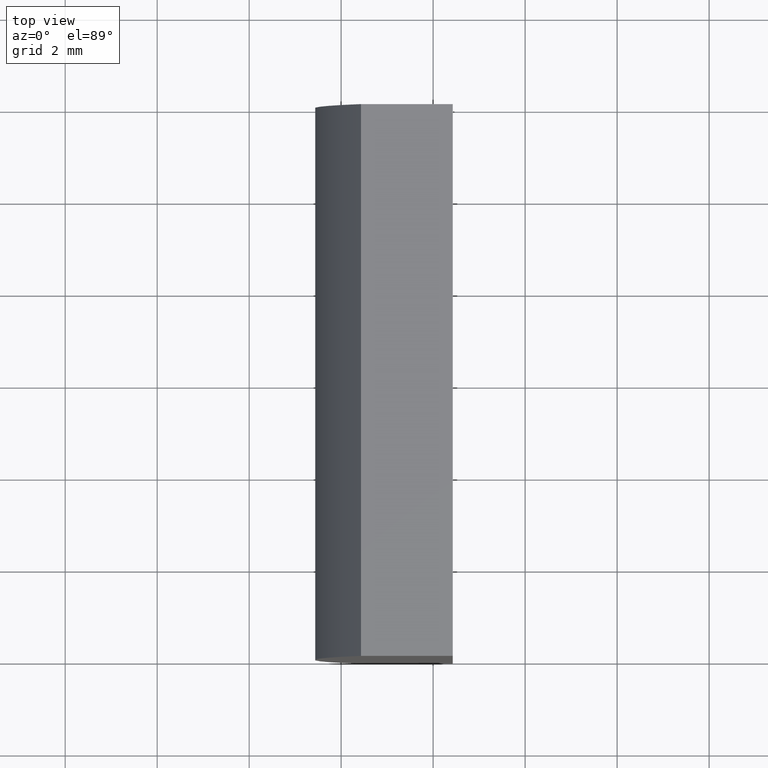
[diagram: clean part render]
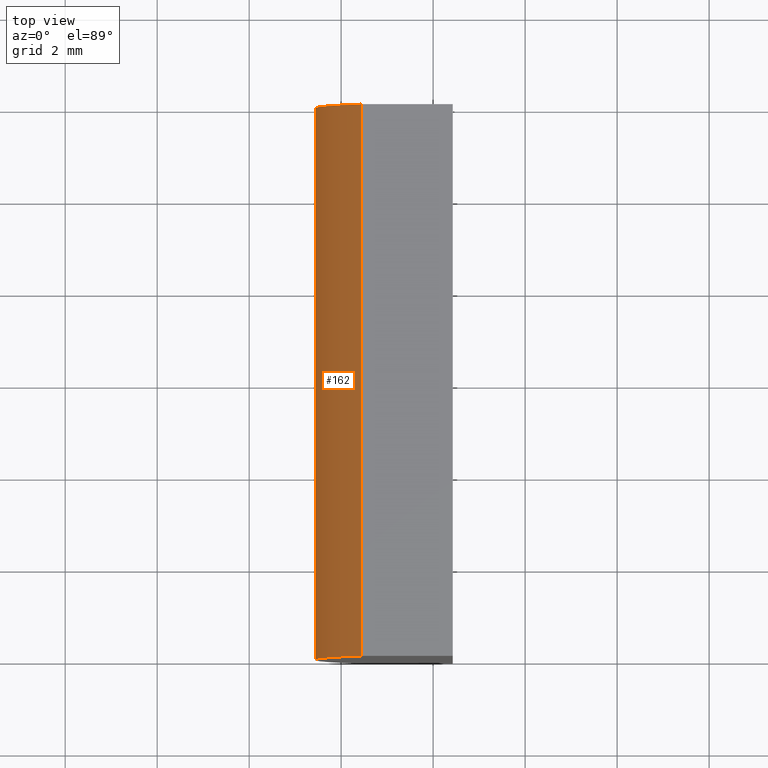
[diagram: same view with one face highlighted and labeled with its STEP entity id]
A machine part, top view. The second image highlights one B-rep face of the part: STEP entity #162.
In plain terms, the highlighted cylindrical surface (partial cylindrical patch) has radius 12.93 mm, axis along (-0, -1, -0).
Its self-contained STEP definition (entity closure, byte-faithful):
#5 = DIRECTION ( 'NONE',  ( 0.0000000000000000000, 1.000000000000000000, 0.0000000000000000000 ) ) ;
#11 = AXIS2_PLACEMENT_3D ( 'NONE', #204, #149, #57 ) ;
#13 = EDGE_CURVE ( 'NONE', #37, #170, #199, .T. ) ;
#14 = LINE ( 'NONE', #136, #195 ) ;
#19 = VECTOR ( 'NONE', #152, 1000.000000000000000 ) ;
#35 = DIRECTION ( 'NONE',  ( 0.0000000000000000000, 0.0000000000000000000, 1.000000000000000000 ) ) ;
#37 = VERTEX_POINT ( 'NONE', #111 ) ;
#49 = CIRCLE ( 'NONE', #190, 12.93000000000000100 ) ;
#57 = DIRECTION ( 'NONE',  ( 0.0000000000000000000, 0.0000000000000000000, -1.000000000000000000 ) ) ;
#58 = CARTESIAN_POINT ( 'NONE',  ( 4.355204334851265500, 12.00000000000000000, 4.286263797015675000E-017 ) ) ;
#59 = ORIENTED_EDGE ( 'NONE', *, *, #172, .T. ) ;
#77 = DIRECTION ( 'NONE',  ( 0.0000000000000000000, 1.000000000000000000, 0.0000000000000000000 ) ) ;
#81 = CARTESIAN_POINT ( 'NONE',  ( -7.568926660739147200, 0.0000000000000000000, 5.000000000000000000 ) ) ;
#85 = AXIS2_PLACEMENT_3D ( 'NONE', #58, #5, #35 ) ;
#107 = VERTEX_POINT ( 'NONE', #114 ) ;
#111 = CARTESIAN_POINT ( 'NONE',  ( -7.568926660739147200, 12.00000000000000000, -5.000000000000000000 ) ) ;
#112 = CARTESIAN_POINT ( 'NONE',  ( 4.355204334851265500, 0.0000000000000000000, 4.286263797015675000E-017 ) ) ;
#114 = CARTESIAN_POINT ( 'NONE',  ( -7.568926660739147200, 0.0000000000000000000, -5.000000000000000000 ) ) ;
#116 = ORIENTED_EDGE ( 'NONE', *, *, #167, .F. ) ;
#117 = DIRECTION ( 'NONE',  ( -0.0000000000000000000, -1.000000000000000000, -0.0000000000000000000 ) ) ;
#125 = EDGE_LOOP ( 'NONE', ( #137, #116, #128, #59 ) ) ;
#128 = ORIENTED_EDGE ( 'NONE', *, *, #13, .F. ) ;
#132 = DIRECTION ( 'NONE',  ( 0.0000000000000000000, 0.0000000000000000000, 1.000000000000000000 ) ) ;
#135 = EDGE_CURVE ( 'NONE', #107, #178, #49, .T. ) ;
#136 = CARTESIAN_POINT ( 'NONE',  ( -7.568926660739147200, 12.00000000000000000, -5.000000000000000000 ) ) ;
#137 = ORIENTED_EDGE ( 'NONE', *, *, #135, .T. ) ;
#143 = CYLINDRICAL_SURFACE ( 'NONE', #11, 12.93000000000000100 ) ;
#149 = DIRECTION ( 'NONE',  ( -0.0000000000000000000, -1.000000000000000000, -0.0000000000000000000 ) ) ;
#152 = DIRECTION ( 'NONE',  ( -0.0000000000000000000, -1.000000000000000000, -0.0000000000000000000 ) ) ;
#162 = ADVANCED_FACE ( 'NONE', ( #176 ), #143, .T. ) ;
#163 = CARTESIAN_POINT ( 'NONE',  ( -7.568926660739147200, 12.00000000000000000, 5.000000000000000000 ) ) ;
#165 = LINE ( 'NONE', #163, #19 ) ;
#167 = EDGE_CURVE ( 'NONE', #170, #178, #165, .T. ) ;
#170 = VERTEX_POINT ( 'NONE', #175 ) ;
#172 = EDGE_CURVE ( 'NONE', #37, #107, #14, .T. ) ;
#175 = CARTESIAN_POINT ( 'NONE',  ( -7.568926660739147200, 12.00000000000000000, 5.000000000000000000 ) ) ;
#176 = FACE_OUTER_BOUND ( 'NONE', #125, .T. ) ;
#178 = VERTEX_POINT ( 'NONE', #81 ) ;
#190 = AXIS2_PLACEMENT_3D ( 'NONE', #112, #77, #132 ) ;
#195 = VECTOR ( 'NONE', #117, 1000.000000000000000 ) ;
#199 = CIRCLE ( 'NONE', #85, 12.93000000000000100 ) ;
#204 = CARTESIAN_POINT ( 'NONE',  ( 4.355204334851265500, 12.00000000000000000, 4.286263797015675000E-017 ) ) ;